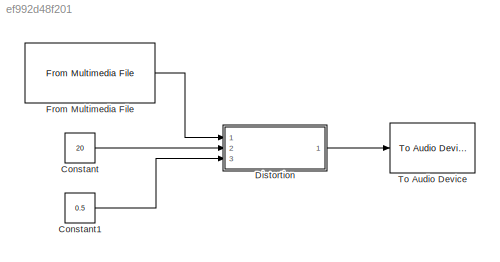
MODEL slx_ef992d48f201
KIND model
BLOCK [Constant] Constant
  Value = 20
BLOCK [Constant] Constant1
  Value = 0.5
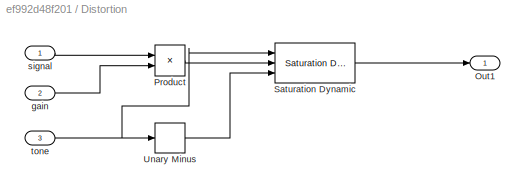
BLOCK [SubSystem] Distortion
  Ports = [3, 1]
  RequestExecContextInheritance = off
BLOCK [Outport] Distortion/Out1
  IconDisplay = Port number
BLOCK [Product] Distortion/Product
  InputSameDT = off
  OutDataTypeStr = Inherit: Inherit via internal rule
  Ports = [2, 1]
  RndMeth = Floor
  SaturateOnIntegerOverflow = off
BLOCK [Reference] Distortion/Saturation Dynamic  REF=simulink/Discontinuities/Saturation
Dynamic
  DoSatur = off
  LockScale = off
  OutDataType = fixdt(1, 16)
  OutDataTypeStr = Inherit: Same as second input
  OutMax = []
  OutMin = []
  OutScaling = 2^-10
  OutputDataTypeScalingMode = Same as second input
  Ports = [3, 1]
  RndMeth = Floor
  SourceBlock = simulink/Discontinuities/Saturation\nDynamic
  SourceType = Saturation Dynamic
BLOCK [UnaryMinus] Distortion/Unary Minus
BLOCK [Inport] Distortion/gain
  IconDisplay = Port number
  Port = 2
BLOCK [Inport] Distortion/signal
  IconDisplay = Port number
BLOCK [Inport] Distortion/tone
  IconDisplay = Port number
  Port = 3
BLOCK [Reference] From Multimedia File  REF=dspvision/From Multimedia File
  Ports = [0, 1]
  SourceBlock = dspvision/From Multimedia File
  SourceType = From Multimedia File
  audioDataType = double
  audioFrameSize = 2048
  colorVideoFormat = Separate color signals
  computeAudioFrameSize = off
  dataOrg = Column-major
  fourcc = RGB
  inheritSampleTime = on
  inputFilename = <userpath>\Desktop\Embedded system\MATLAB_DSP\distortion\harmonyChorus.wav
  isIntensityVideo = off
  loop = on
  noAudioOutput = off
  numPlays = inf
  outSamplingMode = Frame based
  outputEOF = off
  outputStreams = Audio only
  userDefinedSampleTime = 1/30
  videoDataType = single
BLOCK [Reference] To Audio Device  REF=dspsnks4/To Audio
Device
  Ports = [1]
  SourceBlock = dspsnks4/To Audio\nDevice
  SourceType = To Audio Device
  autoBufferSize = on
  bufferSize = 4096
  defaultOutputChannelMapping = on
  deviceDatatype = Determine from input data type
  deviceName = Default
  inheritSampleRate = on
  outputChannelMapping = 1:2
  outputNumUnderrunSamples = off
  queueDuration = 1.0
  sampleRate = 44100
LINE Constant1:1 -> Distortion:3
LINE Constant:1 -> Distortion:2
LINE Distortion/Product:1 -> Distortion/Saturation Dynamic:2
LINE Distortion/Saturation Dynamic:1 -> Distortion/Out1:1
LINE Distortion/Unary Minus:1 -> Distortion/Saturation Dynamic:3
LINE Distortion/gain:1 -> Distortion/Product:2
LINE Distortion/signal:1 -> Distortion/Product:1
NET Distortion/tone:1 -> Distortion/Saturation Dynamic:1, Distortion/Unary Minus:1
LINE Distortion:1 -> To Audio Device:1
LINE From Multimedia File:1 -> Distortion:1
note: NET lines group one-source signal fan-out (src -> all destinations, sorted); 1:1 wires keep LINE
